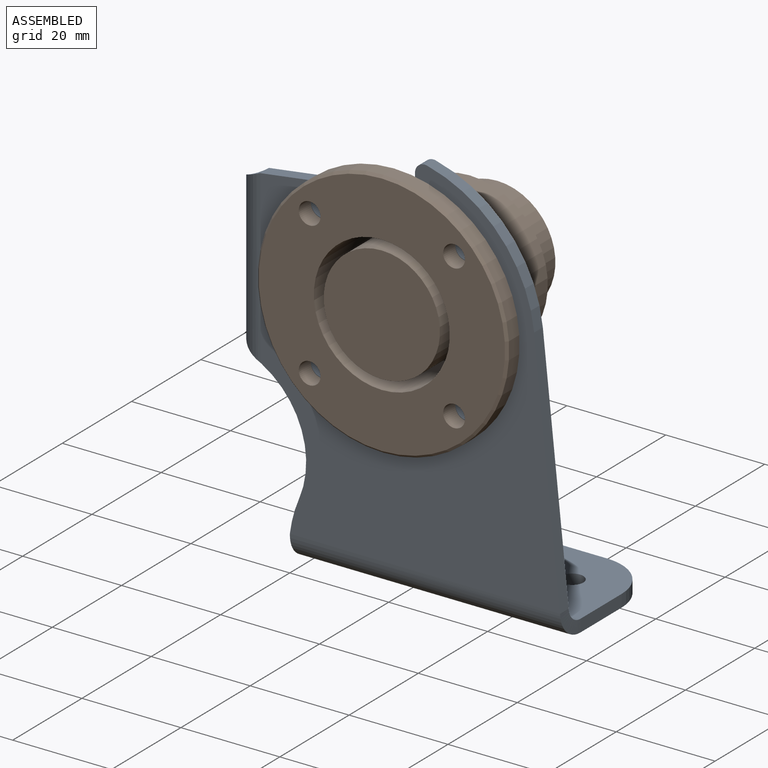
[diagram: assembled view]
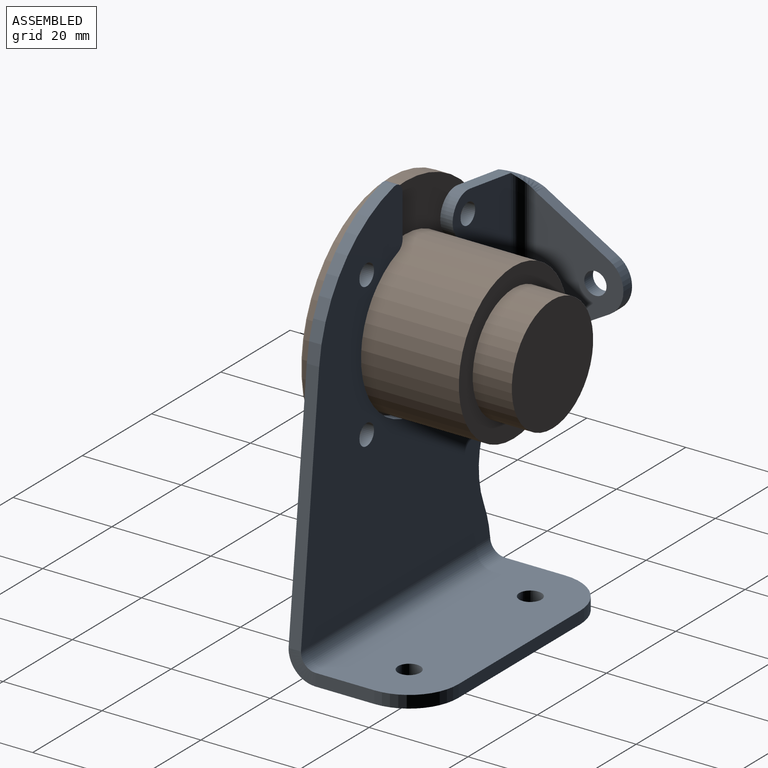
[diagram: assembled view, second angle]
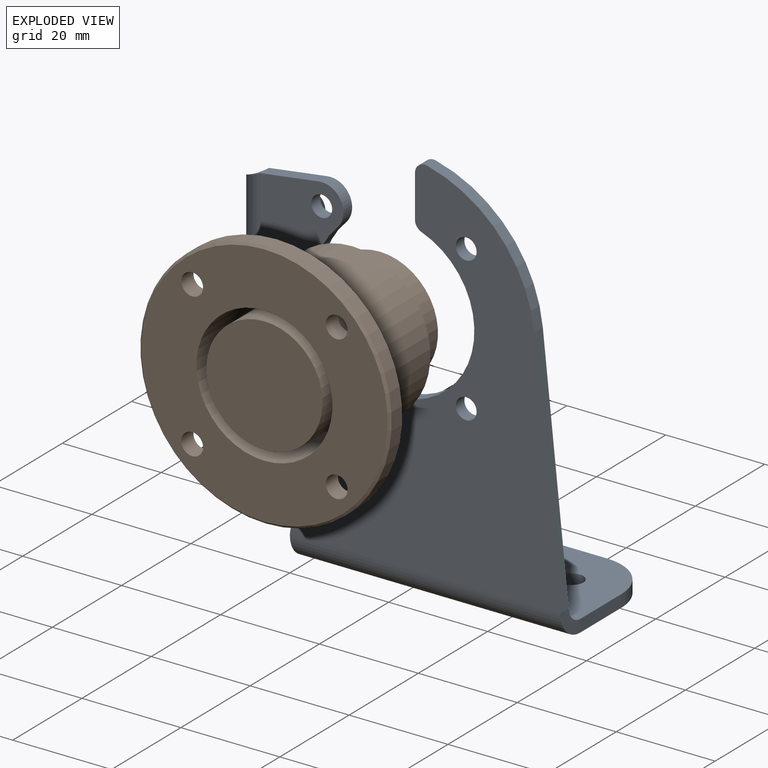
[diagram: exploded view]
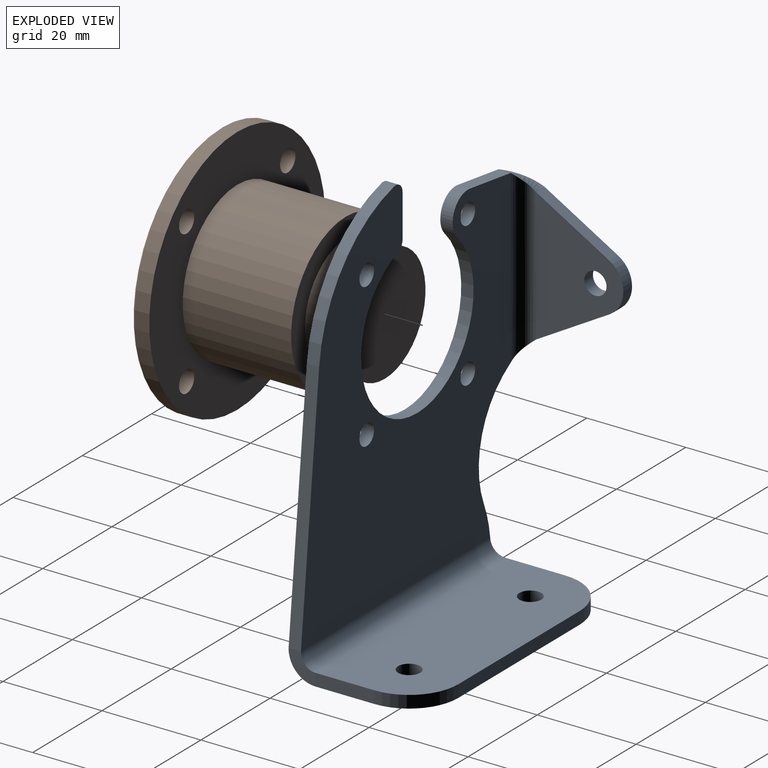
[diagram: exploded view, second angle]
ASSEMBLY  parts=2 mates=3
PART A: 40 faces, bbox 66.3x27.5x80.3 mm
  f0: cylinder r=16.25mm len=32.5mm, axis (0,-1,0), area 209.1mm2, adj f16,f17,f23,f38
  f1: cylinder r=2.25mm len=4.5mm, axis (-1,0,0), area 35.3mm2, adj f4,f6
  f2: cylinder r=5.66mm len=9.81mm, axis (-1,0,0), area 29.6mm2, adj f3,f4,f5,f6
  f3: plane 14.83x8.56mm, normal (0,0.5,-0.87), area 42.8mm2, adj f2,f4,f6,f35
  f4: plane 26.93x17.66mm, normal (-1,0,0), area 276.2mm2, adj f1,f2,f3,f5,f36
  f5: plane 14.83x8.56mm, normal (0,0.5,0.87), area 42.8mm2, adj f2,f4,f6,f34
  f6: plane 26.93x17.66mm, normal (1,0,0), area 276.2mm2, adj f1,f2,f3,f5,f37
  f7: cylinder r=10mm len=10mm, axis (0,0,-1), area 39.3mm2, adj f8,f13,f14,f15
  f8: plane 35x2.5mm, normal (0,1,0), area 87.5mm2, adj f7,f11,f13,f15
  f9: cylinder r=2.25mm len=4.5mm, axis (0,0,-1), area 35.3mm2, adj f13,f15
  f10: cylinder r=2.25mm len=4.5mm, axis (0,0,-1), area 35.3mm2, adj f13,f15
  f11: cylinder r=10mm len=10mm, axis (0,0,1), area 39.3mm2, adj f8,f12,f13,f15
  f12: plane 12x2.5mm, normal (1,0,0), area 30mm2, adj f11,f13,f15,f30
  f13: plane 55x22mm, normal (0,0,-1), area 1135.3mm2, adj f7,f8,f9,f10,f11,f12,f14,f32
  f14: plane 12x2.5mm, normal (-1,0,0), area 30mm2, adj f7,f13,f15,f31
  f15: plane 55x22mm, normal (0,0,1), area 1135.3mm2, adj f7,f8,f9,f10,f11,f12,f14,f33
  f16: plane 74.75x60.6mm, normal (0,-1,0), area 2677.2mm2, adj f0,f18,f19,f20,f21,f22,f23,f24
  f17: plane 74.75x60.6mm, normal (0,1,0), area 2677.2mm2, adj f0,f18,f19,f20,f21,f22,f23,f24
  f18: cylinder r=2.11mm len=4.22mm, axis (0,-1,0), area 33.1mm2, adj f16,f17
  f19: cylinder r=2.11mm len=4.22mm, axis (0,-1,0), area 33.1mm2, adj f16,f17
  f20: cylinder r=2.11mm len=4.22mm, axis (0,-1,0), area 33.1mm2, adj f16,f17
  f21: cylinder r=2.11mm len=4.22mm, axis (0,-1,0), area 33.1mm2, adj f16,f17
  f22: plane 2.5x0.25mm, normal (-0.5,0,-0.87), area 0.7mm2, adj f16,f17,f29,f35
  f23: cylinder r=2mm len=2.5mm, axis (0,-1,0), area 6.1mm2, adj f0,f16,f17,f24
  f24: plane 8.61x2.5mm, normal (-1,0,0), area 21.5mm2, adj f16,f17,f23,f25
  f25: cylinder r=2mm len=2.5mm, axis (0,-1,0), area 9mm2, adj f16,f17,f24,f26
  f26: cylinder r=28.5mm len=24.72mm, axis (0,-1,0), area 87.5mm2, adj f16,f17,f25,f27
  f27: plane 49.98x5.25mm, normal (0.99,0,0.1), area 125.6mm2, adj f16,f17,f26,f30
  f28: cylinder r=25mm len=6.85mm, axis (0,-1,0), area 17.8mm2, adj f16,f17,f29,f31
  f29: cylinder r=18mm len=22.68mm, axis (0,-1,0), area 65.4mm2, adj f16,f17,f22,f28
  f30: bspline ~5.5x5.5mm, area 16.7mm2, adj f12,f27,f32,f33
  f31: bspline ~5.5x5.5mm, area 16.7mm2, adj f14,f28,f32,f33
  f32: cylinder r=5.5mm len=55mm, axis (-1,0,0), area 473.6mm2, adj f13,f16,f30,f31
  f33: cylinder r=3mm len=55mm, axis (-1,0,0), area 258.3mm2, adj f15,f17,f30,f31
  f34: bspline ~5.5x5.5mm, area 19.3mm2, adj f5,f36,f37,f39
  f35: bspline ~5.5x5.5mm, area 19.3mm2, adj f3,f22,f36,f37
  f36: cylinder r=5.5mm len=34.64mm, axis (0,0,1), area 266mm2, adj f4,f16,f34,f35
  f37: cylinder r=3mm len=34.64mm, axis (0,0,1), area 145.1mm2, adj f6,f17,f34,f35
  f38: cylinder r=4.4mm len=7.51mm, axis (0,-1,0), area 27.4mm2, adj f0,f16,f17,f39
  f39: plane 11.8x2.5mm, normal (-0.14,0,0.99), area 29.8mm2, adj f16,f17,f34,f38
PART B: 16 faces, bbox 50.8x50.8x33.3 mm
  f0: plane 23.5x23.5mm, normal (0,0,1), area 433.7mm2, adj f1
  f1: cylinder r=11.75mm len=23.5mm, axis (0,0,-1), area 1107.4mm2, adj f0,f2
  f2: plane 27.5x27.5mm, normal (0,0,1), area 160.2mm2, adj f1,f3
  f3: cylinder r=13.75mm len=27.5mm, axis (0,0,-1), area 1295.9mm2, adj f2,f4
  f4: plane 49.8x49.8mm, normal (0,0,1), area 1293mm2, adj f3,f11,f12,f13,f14,f15
  f5: cylinder r=25.4mm len=50.8mm, axis (0,0,-1), area 478.8mm2, adj f6,f11
  f6: plane 50.8x50.8mm, normal (0,0,-1), area 1186.7mm2, adj f5,f7,f12,f13,f14,f15
  f7: cylinder r=15.75mm len=31.5mm, axis (0,0,-1), area 2169.9mm2, adj f6,f8
  f8: plane 31.5x31.5mm, normal (0,0,-1), area 345.6mm2, adj f7,f9
  f9: cylinder r=11.75mm len=23.5mm, axis (0,0,-1), area 583.4mm2, adj f8,f10
  f10: plane 23.5x23.5mm, normal (0,0,-1), area 433.7mm2, adj f9
  f11: cone r=25.4mm half-angle=45deg, axis (0,0,-1), area 111.7mm2, adj f4,f5
  f12: cylinder r=2.2mm len=4.4mm, axis (0,0,1), area 48.4mm2, adj f4,f6
  f13: cylinder r=2.2mm len=4.4mm, axis (0,0,1), area 48.4mm2, adj f4,f6
  f14: cylinder r=2.2mm len=4.4mm, axis (0,0,1), area 48.4mm2, adj f4,f6
  f15: cylinder r=2.2mm len=4.4mm, axis (0,0,1), area 48.4mm2, adj f4,f6
PLACE A t=(1.07,0,-1.24)mm
PLACE B rot(axis=(1,0,0),90deg) t=(1.07,-3.5,-1.24)mm
MATE planar B.f11 <-> A.f16  axis (0,1,0) through (1.07,0,-1.24)mm
MATE cylindrical B.f11 <-> A.f0  axis (0,1,0) through (1.07,10.96,-1.24)mm
MATE cylindrical A.f18 <-> B.f14  axis (0,-1,0) through (-13.53,0,-15.84)mm
